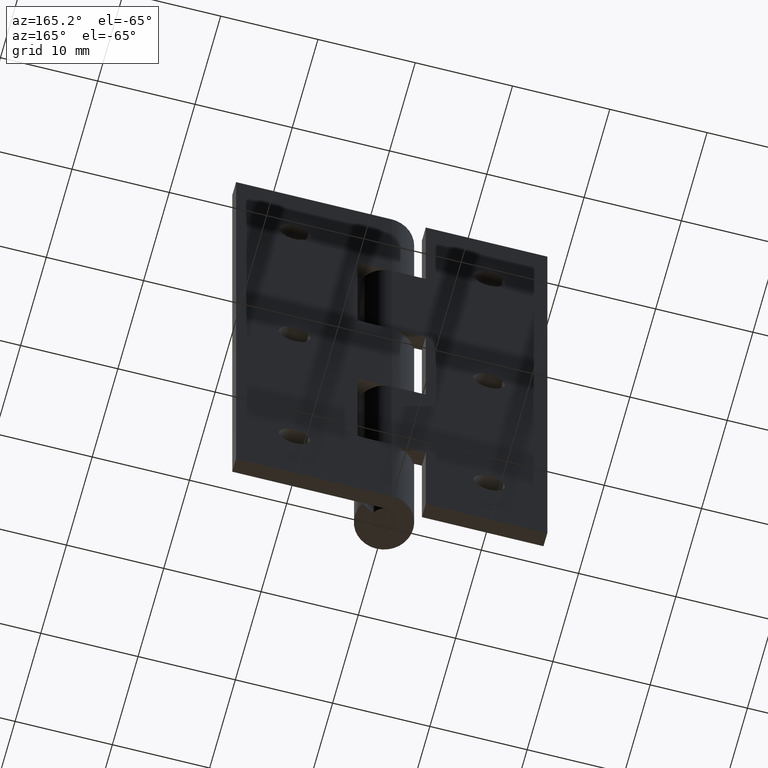
[diagram: clean part render]
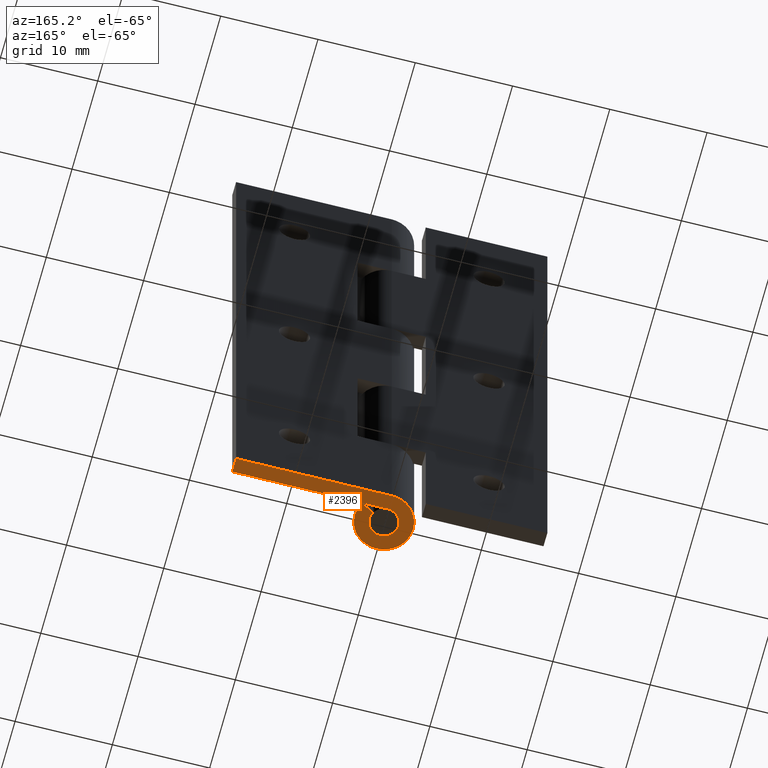
[diagram: same view with one face highlighted and labeled with its STEP entity id]
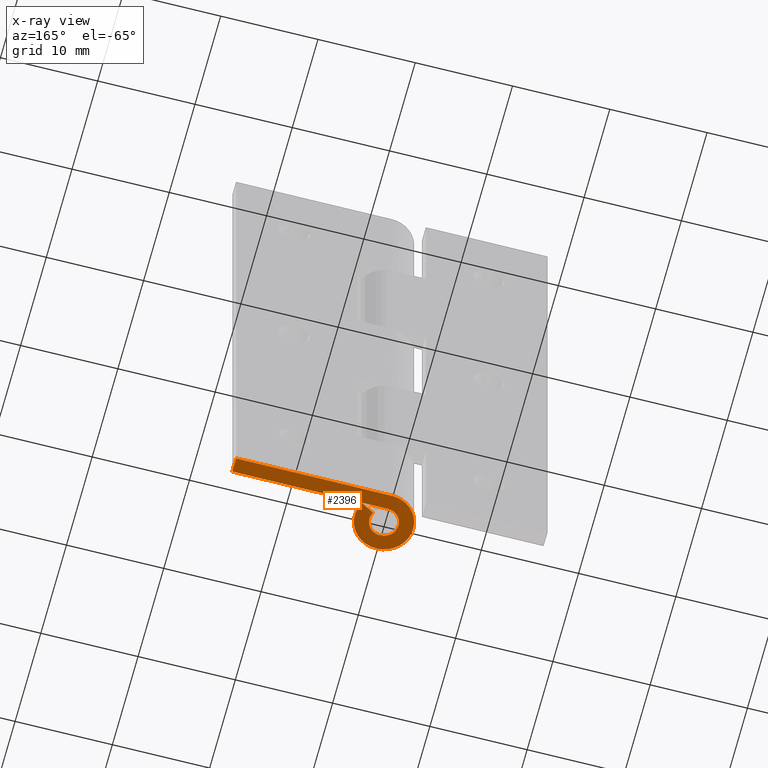
[diagram: x-ray of the same camera — body ghosted, the highlighted face saturated]
A machine part, auxiliary view. The second image highlights one B-rep face of the part: STEP entity #2396.
The next image is the same camera in x-ray: the body ghosted, the highlighted face saturated — about 0% of this face is hidden behind the body in this view.
In plain terms, the highlighted face is a freeform B-spline surface patch.
Its self-contained STEP definition (entity closure, byte-faithful):
#2319=CARTESIAN_POINT('',(-3.948998030078882,-3.299492242647685,0.0));
#2320=CARTESIAN_POINT('',(16.949048002143599,-3.299492242647685,0.0));
#2321=CARTESIAN_POINT('',(-3.948998030078882,3.299690266066975,0.0));
#2322=CARTESIAN_POINT('',(16.949048002143599,3.299690266066975,0.0));
#2323=B_SPLINE_SURFACE_WITH_KNOTS('',1,1,((#2319,#2321),(#2320,#2322)),.UNSPECIFIED.,.F.,.F.,.U.,(2,2),(2,2),(0.0,20.898046032222481),(0.0,6.599182508714661),.UNSPECIFIED.);
#2324=CARTESIAN_POINT('',(1.313154598666890,0.725000000000000,0.0));
#2325=VERTEX_POINT('',#2324);
#2326=CARTESIAN_POINT('',(0.0,1.500000000000000,0.0));
#2327=VERTEX_POINT('',#2326);
#2328=CARTESIAN_POINT('',(1.313154598666890,0.725000000000000,0.0));
#2329=CARTESIAN_POINT('',(1.866715792252885,-0.277636451035838,0.0));
#2330=CARTESIAN_POINT('',(1.045325295443045,-1.075776476182162,0.0));
#2331=CARTESIAN_POINT('',(0.223934798633207,-1.873916501328486,0.0));
#2332=CARTESIAN_POINT('',(-0.762397534098844,-1.291801068276382,0.0));
#2333=CARTESIAN_POINT('',(-1.748729866830896,-0.709685635224277,0.0));
#2334=CARTESIAN_POINT('',(-1.447014444021651,0.395157182387861,0.0));
#2335=CARTESIAN_POINT('',(-1.145299021212405,1.500000000000000,0.0));
#2336=CARTESIAN_POINT('',(0.0,1.500000000000000,0.0));
#2344=(BOUNDED_CURVE()B_SPLINE_CURVE(2,(#2328,#2329,#2330,#2331,#2332,#2333,#2334,#2335,#2336),.UNSPECIFIED.,.F.,.U.)B_SPLINE_CURVE_WITH_KNOTS((3,2,2,2,3),(0.0,0.250000000000000,0.500000000000000,0.750000000000000,1.0),.UNSPECIFIED.)CURVE()GEOMETRIC_REPRESENTATION_ITEM()RATIONAL_B_SPLINE_CURVE((1.0,0.794807562115481,1.0,0.794807562115481,1.0,0.794807562115481,1.0,0.794807562115481,1.0))REPRESENTATION_ITEM(''));
#2345=EDGE_CURVE('',#2325,#2327,#2344,.T.);
#2346=ORIENTED_EDGE('',*,*,#2345,.F.);
#2347=CARTESIAN_POINT('',(2.626309197333780,1.450000000000000,0.0));
#2348=VERTEX_POINT('',#2347);
#2349=CARTESIAN_POINT('',(2.626309197333780,1.450000000000000,0.0));
#2350=CARTESIAN_POINT('',(1.313154598666890,0.725000000000000,0.0));
#2351=QUASI_UNIFORM_CURVE('',1,(#2349,#2350),.UNSPECIFIED.,.F.,.U.);
#2352=EDGE_CURVE('',#2348,#2325,#2351,.T.);
#2353=ORIENTED_EDGE('',*,*,#2352,.F.);
#2354=CARTESIAN_POINT('',(0.0,3.0,0.0));
#2355=VERTEX_POINT('',#2354);
#2356=CARTESIAN_POINT('',(2.626309197333780,1.450000000000000,0.0));
#2357=CARTESIAN_POINT('',(3.733431584505770,-0.555272902071675,0.0));
#2358=CARTESIAN_POINT('',(2.090650590886091,-2.151552952364324,0.0));
#2359=CARTESIAN_POINT('',(0.447869597266413,-3.747833002656972,0.0));
#2360=CARTESIAN_POINT('',(-1.524795068197689,-2.583602136552764,0.0));
#2361=CARTESIAN_POINT('',(-3.497459733661792,-1.419371270448555,0.0));
#2362=CARTESIAN_POINT('',(-2.894028888043301,0.790314364775722,0.0));
#2363=CARTESIAN_POINT('',(-2.290598042424809,3.000000000000000,0.0));
#2364=CARTESIAN_POINT('',(0.0,3.0,0.0));
#2372=(BOUNDED_CURVE()B_SPLINE_CURVE(2,(#2356,#2357,#2358,#2359,#2360,#2361,#2362,#2363,#2364),.UNSPECIFIED.,.F.,.U.)B_SPLINE_CURVE_WITH_KNOTS((3,2,2,2,3),(0.0,0.250000000000000,0.500000000000000,0.750000000000000,1.0),.UNSPECIFIED.)CURVE()GEOMETRIC_REPRESENTATION_ITEM()RATIONAL_B_SPLINE_CURVE((1.0,0.794807562115481,1.0,0.794807562115481,1.0,0.794807562115481,1.0,0.794807562115481,1.0))REPRESENTATION_ITEM(''));
#2373=EDGE_CURVE('',#2348,#2355,#2372,.T.);
#2374=ORIENTED_EDGE('',*,*,#2373,.T.);
#2375=CARTESIAN_POINT('',(16.0,3.0,0.0));
#2376=VERTEX_POINT('',#2375);
#2377=CARTESIAN_POINT('',(16.0,3.0,0.0));
#2378=CARTESIAN_POINT('',(0.0,3.0,0.0));
#2379=QUASI_UNIFORM_CURVE('',1,(#2377,#2378),.UNSPECIFIED.,.F.,.U.);
#2380=EDGE_CURVE('',#2376,#2355,#2379,.T.);
#2381=ORIENTED_EDGE('',*,*,#2380,.F.);
#2382=CARTESIAN_POINT('',(16.0,1.500000000000000,0.0));
#2383=VERTEX_POINT('',#2382);
#2384=CARTESIAN_POINT('',(16.0,1.500000000000000,0.0));
#2385=CARTESIAN_POINT('',(16.0,3.0,0.0));
#2386=QUASI_UNIFORM_CURVE('',1,(#2384,#2385),.UNSPECIFIED.,.F.,.U.);
#2387=EDGE_CURVE('',#2383,#2376,#2386,.T.);
#2388=ORIENTED_EDGE('',*,*,#2387,.F.);
#2389=CARTESIAN_POINT('',(0.0,1.500000000000000,0.0));
#2390=CARTESIAN_POINT('',(16.0,1.500000000000000,0.0));
#2391=QUASI_UNIFORM_CURVE('',1,(#2389,#2390),.UNSPECIFIED.,.F.,.U.);
#2392=EDGE_CURVE('',#2327,#2383,#2391,.T.);
#2393=ORIENTED_EDGE('',*,*,#2392,.F.);
#2394=EDGE_LOOP('',(#2346,#2353,#2374,#2381,#2388,#2393));
#2395=FACE_OUTER_BOUND('',#2394,.T.);
#2396=ADVANCED_FACE('',(#2395),#2323,.F.);